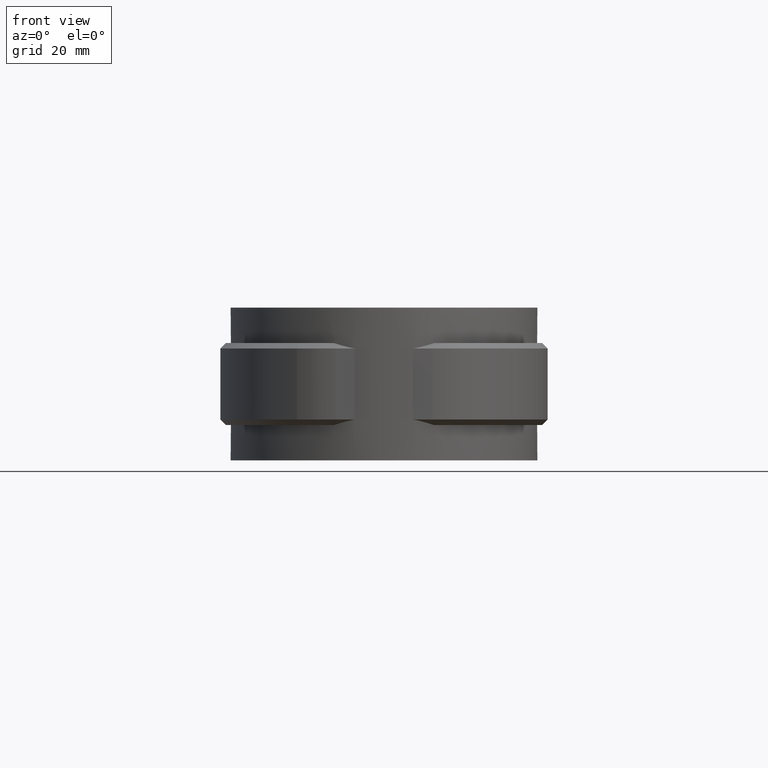
[diagram: clean part render]
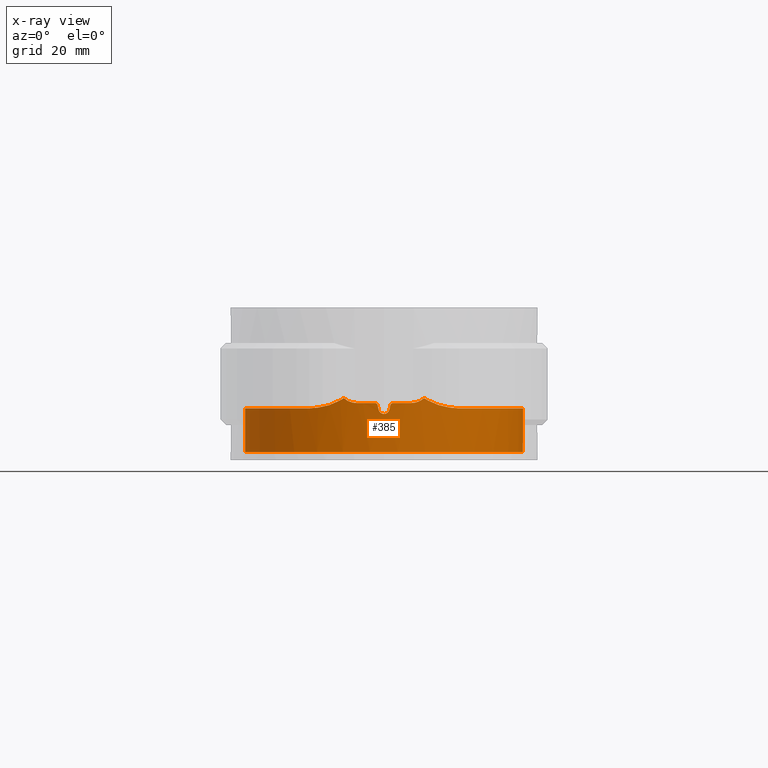
[diagram: x-ray — body ghosted, one internal face saturated and labeled with its STEP entity id]
A machine part, front view, then the same camera in x-ray: the body is ghosted and one INTERNAL B-rep face — a face not visible from any outside direction — is saturated and labeled: STEP entity #385.
In plain terms, the highlighted cylindrical surface (partial cylindrical patch) has radius 25.5 mm, axis along (0, 0, -1).
Its self-contained STEP definition (entity closure, byte-faithful):
#385 = ADVANCED_FACE( '', ( #758 ), #759, .F. );
#758 = FACE_OUTER_BOUND( '', #1499, .T. );
#759 = CYLINDRICAL_SURFACE( '', #1500, 25.5000000000000 );
#1499 = EDGE_LOOP( '', ( #3401, #3402, #3403, #3404, #3405, #3406, #3407, #3408, #3409, #3410, #3411, #3412, #3413, #3414, #3415, #3416, #3417, #3418 ) );
#1500 = AXIS2_PLACEMENT_3D( '', #3419, #3420, #3421 );
#3401 = ORIENTED_EDGE( '', *, *, #7232, .T. );
#3402 = ORIENTED_EDGE( '', *, *, #7202, .T. );
#3403 = ORIENTED_EDGE( '', *, *, #7254, .T. );
#3404 = ORIENTED_EDGE( '', *, *, #7255, .T. );
#3405 = ORIENTED_EDGE( '', *, *, #7256, .T. );
#3406 = ORIENTED_EDGE( '', *, *, #7242, .T. );
#3407 = ORIENTED_EDGE( '', *, *, #7169, .F. );
#3408 = ORIENTED_EDGE( '', *, *, #7257, .F. );
#3409 = ORIENTED_EDGE( '', *, *, #7258, .T. );
#3410 = ORIENTED_EDGE( '', *, *, #7259, .T. );
#3411 = ORIENTED_EDGE( '', *, *, #7260, .T. );
#3412 = ORIENTED_EDGE( '', *, *, #7230, .T. );
#3413 = ORIENTED_EDGE( '', *, *, #7235, .T. );
#3414 = ORIENTED_EDGE( '', *, *, #7212, .T. );
#3415 = ORIENTED_EDGE( '', *, *, #7261, .T. );
#3416 = ORIENTED_EDGE( '', *, *, #7189, .T. );
#3417 = ORIENTED_EDGE( '', *, *, #7262, .T. );
#3418 = ORIENTED_EDGE( '', *, *, #7263, .T. );
#3419 = CARTESIAN_POINT( '', ( 0.000000000000000, 0.000000000000000, 0.000000000000000 ) );
#3420 = DIRECTION( '', ( 0.000000000000000, 0.000000000000000, -1.00000000000000 ) );
#3421 = DIRECTION( '', ( 1.00000000000000, -6.12303176911189E-017, 0.000000000000000 ) );
#7169 = EDGE_CURVE( '', #8166, #8168, #8169, .T. );
#7189 = EDGE_CURVE( '', #8204, #8202, #8205, .T. );
#7202 = EDGE_CURVE( '', #8227, #8225, #8228, .T. );
#7212 = EDGE_CURVE( '', #8246, #8244, #8247, .T. );
#7230 = EDGE_CURVE( '', #8264, #8275, #8277, .T. );
#7232 = EDGE_CURVE( '', #8280, #8227, #8281, .T. );
#7235 = EDGE_CURVE( '', #8275, #8246, #8284, .T. );
#7242 = EDGE_CURVE( '', #8292, #8168, #8296, .T. );
#7254 = EDGE_CURVE( '', #8225, #8314, #8315, .T. );
#7255 = EDGE_CURVE( '', #8314, #8316, #8317, .T. );
#7256 = EDGE_CURVE( '', #8316, #8292, #8318, .T. );
#7257 = EDGE_CURVE( '', #8319, #8166, #8320, .T. );
#7258 = EDGE_CURVE( '', #8319, #8321, #8322, .T. );
#7259 = EDGE_CURVE( '', #8321, #8323, #8324, .T. );
#7260 = EDGE_CURVE( '', #8323, #8264, #8325, .F. );
#7261 = EDGE_CURVE( '', #8244, #8204, #8326, .T. );
#7262 = EDGE_CURVE( '', #8202, #8327, #8328, .T. );
#7263 = EDGE_CURVE( '', #8327, #8280, #8329, .T. );
#8166 = VERTEX_POINT( '', #9924 );
#8168 = VERTEX_POINT( '', #9926 );
#8169 = CIRCLE( '', #9927, 25.5000000000000 );
#8202 = VERTEX_POINT( '', #10003 );
#8204 = VERTEX_POINT( '', #10006 );
#8205 = B_SPLINE_CURVE_WITH_KNOTS( '', 3, ( #10007, #10008, #10009, #10010, #10011, #10012, #10013, #10014, #10015, #10016 ), .UNSPECIFIED., .F., .F., ( 4, 2, 2, 2, 4 ), ( 3.57622406134550E-018, 0.000671619266939441, 0.00134323853387888, 0.00201485780081831, 0.00268647706775775 ), .UNSPECIFIED. );
#8225 = VERTEX_POINT( '', #10054 );
#8227 = VERTEX_POINT( '', #10059 );
#8228 = B_SPLINE_CURVE_WITH_KNOTS( '', 3, ( #10060, #10061, #10062, #10063, #10064, #10065, #10066, #10067, #10068, #10069 ), .UNSPECIFIED., .F., .F., ( 4, 2, 2, 2, 4 ), ( 8.67361737988404E-019, 0.000656875290142325, 0.00131375058028465, 0.00197062587042697, 0.00262750116056930 ), .UNSPECIFIED. );
#8244 = VERTEX_POINT( '', #10123 );
#8246 = VERTEX_POINT( '', #10126 );
#8247 = B_SPLINE_CURVE_WITH_KNOTS( '', 3, ( #10127, #10128, #10129, #10130, #10131, #10132 ), .UNSPECIFIED., .F., .F., ( 4, 2, 4 ), ( 9.10729824887824E-018, 0.000336083199100358, 0.000672166398200708 ), .UNSPECIFIED. );
#8264 = VERTEX_POINT( '', #10205 );
#8275 = VERTEX_POINT( '', #10248 );
#8277 = B_SPLINE_CURVE_WITH_KNOTS( '', 3, ( #10251, #10252, #10253, #10254, #10255, #10256, #10257, #10258, #10259, #10260 ), .UNSPECIFIED., .F., .F., ( 4, 2, 2, 2, 4 ), ( 1.13360787965509E-014, 0.000656997080053211, 0.00131399416009509, 0.00197099124013696, 0.00262798832017883 ), .UNSPECIFIED. );
#8280 = VERTEX_POINT( '', #10263 );
#8281 = CIRCLE( '', #10264, 25.5000000000000 );
#8284 = CIRCLE( '', #10268, 25.5000000000000 );
#8292 = VERTEX_POINT( '', #10282 );
#8296 = LINE( '', #10298, #10299 );
#8314 = VERTEX_POINT( '', #10434 );
#8315 = B_SPLINE_CURVE_WITH_KNOTS( '', 3, ( #10435, #10436, #10437, #10438 ), .UNSPECIFIED., .F., .F., ( 4, 4 ), ( 0.00811585301675247, 0.00891486322571209 ), .UNSPECIFIED. );
#8316 = VERTEX_POINT( '', #10439 );
#8317 = B_SPLINE_CURVE_WITH_KNOTS( '', 3, ( #10440, #10441, #10442, #10443, #10444, #10445, #10446, #10447, #10448, #10449 ), .UNSPECIFIED., .F., .F., ( 4, 2, 2, 2, 4 ), ( 5.49937438786957E-017, 0.00172797127034807, 0.00345594254069609, 0.00518391381104411, 0.00691188508139213 ), .UNSPECIFIED. );
#8318 = B_SPLINE_CURVE_WITH_KNOTS( '', 3, ( #10450, #10451, #10452, #10453, #10454, #10455, #10456, #10457, #10458, #10459, #10460, #10461, #10462, #10463, #10464, #10465, #10466, #10467, #10468, #10469, #10470, #10471, #10472, #10473, #10474, #10475, #10476, #10477, #10478, #10479, #10480, #10481, #10482, #10483, #10484, #10485, #10486, #10487, #10488, #10489, #10490, #10491 ), .UNSPECIFIED., .F., .F., ( 4, 2, 2, 2, 2, 2, 2, 2, 2, 2, 2, 2, 2, 2, 2, 2, 2, 2, 2, 2, 4 ), ( 6.25463444138550E-018, 0.00367893687146761, 0.00735787374293522, 0.00919734217866902, 0.0110368106144028, 0.0147157474858704, 0.0165552159216042, 0.0183946843573380, 0.0220736212288057, 0.0257525581002733, 0.0294314949717409, 0.0331104318432085, 0.0349499002789423, 0.0367893687146761, 0.0404683055861437, 0.0423077740218775, 0.0441472424576113, 0.0478261793290789, 0.0515051162005465, 0.0551840530720142, 0.0588629899434818 ), .UNSPECIFIED. );
#8319 = VERTEX_POINT( '', #10492 );
#8320 = LINE( '', #10493, #10494 );
#8321 = VERTEX_POINT( '', #10495 );
#8322 = B_SPLINE_CURVE_WITH_KNOTS( '', 3, ( #10496, #10497, #10498, #10499, #10500, #10501, #10502, #10503, #10504, #10505, #10506, #10507, #10508, #10509, #10510, #10511, #10512, #10513, #10514, #10515, #10516, #10517, #10518, #10519, #10520, #10521, #10522, #10523, #10524, #10525, #10526, #10527, #10528, #10529, #10530, #10531, #10532, #10533, #10534, #10535, #10536, #10537 ), .UNSPECIFIED., .F., .F., ( 4, 2, 2, 2, 2, 2, 2, 2, 2, 2, 2, 2, 2, 2, 2, 2, 2, 2, 2, 2, 4 ), ( 1.73472347597681E-018, 0.00367893654871730, 0.00735787309743460, 0.00919734137179326, 0.0110368096461519, 0.0147157461948692, 0.0165552144692279, 0.0183946827435865, 0.0220736192923038, 0.0257525558410211, 0.0294314923897384, 0.0331104289384557, 0.0349498972128144, 0.0367893654871730, 0.0404683020358903, 0.0423077703102490, 0.0441472385846076, 0.0478261751333249, 0.0515051116820422, 0.0551840482307596, 0.0588629847794769 ), .UNSPECIFIED. );
#8323 = VERTEX_POINT( '', #10538 );
#8324 = B_SPLINE_CURVE_WITH_KNOTS( '', 3, ( #10539, #10540, #10541, #10542, #10543, #10544, #10545, #10546, #10547, #10548 ), .UNSPECIFIED., .F., .F., ( 4, 2, 2, 2, 4 ), ( 4.90653893338680E-018, 0.00173657544033169, 0.00347315088066337, 0.00520972632099506, 0.00694630176132674 ), .UNSPECIFIED. );
#8325 = B_SPLINE_CURVE_WITH_KNOTS( '', 3, ( #10549, #10550, #10551, #10552 ), .UNSPECIFIED., .F., .F., ( 4, 4 ), ( 0.00811585301675283, 0.00891486322571222 ), .UNSPECIFIED. );
#8326 = ELLIPSE( '', #10553, 116.166725925976, 25.5000000000000 );
#8327 = VERTEX_POINT( '', #10554 );
#8328 = ELLIPSE( '', #10555, 116.166785185337, 25.5000000000000 );
#8329 = B_SPLINE_CURVE_WITH_KNOTS( '', 3, ( #10556, #10557, #10558, #10559, #10560, #10561 ), .UNSPECIFIED., .F., .F., ( 4, 2, 4 ), ( 4.33680868994202E-019, 0.000336089115589811, 0.000672178231179621 ), .UNSPECIFIED. );
#9924 = CARTESIAN_POINT( '', ( -6.02727272727273, 24.7774490912821, -25.0000000000000 ) );
#9926 = CARTESIAN_POINT( '', ( 6.02727272727272, 24.7774490912821, -25.0000000000000 ) );
#9927 = AXIS2_PLACEMENT_3D( '', #13693, #13694, #13695 );
#10003 = CARTESIAN_POINT( '', ( 0.975610000000008, -25.4813301287021, -17.2195120000000 ) );
#10006 = CARTESIAN_POINT( '', ( -0.975609757981845, -25.4813301379683, -17.2195121867475 ) );
#10007 = CARTESIAN_POINT( '', ( -0.975609757981839, -25.4813301379683, -17.2195121867475 ) );
#10008 = CARTESIAN_POINT( '', ( -0.925760627941459, -25.4832387234868, -17.4410637856838 ) );
#10009 = CARTESIAN_POINT( '', ( -0.802002231077810, -25.4880019776319, -17.6390184721073 ) );
#10010 = CARTESIAN_POINT( '', ( -0.447412249788038, -25.4966914455417, -17.9226995543411 ) );
#10011 = CARTESIAN_POINT( '', ( -0.227096997064048, -25.5000000081517, -18.0000001885913 ) );
#10012 = CARTESIAN_POINT( '', ( 0.227098827707817, -25.4999999918483, -17.9999998182756 ) );
#10013 = CARTESIAN_POINT( '', ( 0.447442086841579, -25.4966908125914, -17.9226810256618 ) );
#10014 = CARTESIAN_POINT( '', ( 0.802000627794581, -25.4880019186867, -17.6390147326494 ) );
#10015 = CARTESIAN_POINT( '', ( 0.925760910065650, -25.4832387131592, -17.4410636187117 ) );
#10016 = CARTESIAN_POINT( '', ( 0.975610000000002, -25.4813301287021, -17.2195120000000 ) );
#10054 = CARTESIAN_POINT( '', ( 7.34939546607895, -24.4179521312269, -15.0942900655030 ) );
#10059 = CARTESIAN_POINT( '', ( 4.99999999999994, -25.0049995001000, -16.0000000000000 ) );
#10060 = CARTESIAN_POINT( '', ( 4.99999999999994, -25.0049995001000, -16.0000000000000 ) );
#10061 = CARTESIAN_POINT( '', ( 5.21785024917448, -24.9614381616617, -16.0000000000000 ) );
#10062 = CARTESIAN_POINT( '', ( 5.43170297572619, -24.9157182564739, -15.9798433810228 ) );
#10063 = CARTESIAN_POINT( '', ( 5.85190055052108, -24.8203882604465, -15.9014618721545 ) );
#10064 = CARTESIAN_POINT( '', ( 6.05950288664773, -24.7704539655453, -15.8427302358524 ) );
#10065 = CARTESIAN_POINT( '', ( 6.46137466473467, -24.6686765420121, -15.6875971962857 ) );
#10066 = CARTESIAN_POINT( '', ( 6.65244226158002, -24.6176876953642, -15.5927177426437 ) );
#10067 = CARTESIAN_POINT( '', ( 7.01566762755793, -24.5166462480042, -15.3692424921455 ) );
#10068 = CARTESIAN_POINT( '', ( 7.18870220699179, -24.4663181163661, -15.2398142762877 ) );
#10069 = CARTESIAN_POINT( '', ( 7.34939546607989, -24.4179521312326, -15.0942900655021 ) );
#10123 = CARTESIAN_POINT( '', ( -1.16219499999999, -25.4735019732658, -16.3902440000000 ) );
#10126 = CARTESIAN_POINT( '', ( -1.65000000000006, -25.4465616537873, -16.0000000000000 ) );
#10127 = CARTESIAN_POINT( '', ( -1.65000000000006, -25.4465616537873, -15.9999999999999 ) );
#10128 = CARTESIAN_POINT( '', ( -1.53659991012928, -25.4539147158958, -15.9999999995132 ) );
#10129 = CARTESIAN_POINT( '', ( -1.42648680398593, -25.4602242781617, -16.0385576255759 ) );
#10130 = CARTESIAN_POINT( '', ( -1.24913749967912, -25.4695414250657, -16.1803181190874 ) );
#10131 = CARTESIAN_POINT( '', ( -1.18713991437309, -25.4723638943793, -16.2793777116754 ) );
#10132 = CARTESIAN_POINT( '', ( -1.16219499999998, -25.4735019732658, -16.3902440000000 ) );
#10205 = CARTESIAN_POINT( '', ( -7.34939546608233, -24.4179521312244, -15.0942900654970 ) );
#10248 = CARTESIAN_POINT( '', ( -5.00000000000005, -25.0049995001000, -16.0000000000000 ) );
#10251 = CARTESIAN_POINT( '', ( -7.34939546607640, -24.4179521312336, -15.0942900655054 ) );
#10252 = CARTESIAN_POINT( '', ( -7.18867317861765, -24.4663268534215, -15.2398405644545 ) );
#10253 = CARTESIAN_POINT( '', ( -7.01739298879574, -24.5161510957157, -15.3680206501498 ) );
#10254 = CARTESIAN_POINT( '', ( -6.65451597925057, -24.6171258677584, -15.5916005232456 ) );
#10255 = CARTESIAN_POINT( '', ( -6.46172400214024, -24.6685855994419, -15.6874421514948 ) );
#10256 = CARTESIAN_POINT( '', ( -6.05972404065117, -24.7704004228430, -15.8426650273733 ) );
#10257 = CARTESIAN_POINT( '', ( -5.85412782847892, -24.8198636515774, -15.9009090507596 ) );
#10258 = CARTESIAN_POINT( '', ( -5.43379886269243, -24.9152618736964, -15.9795883758927 ) );
#10259 = CARTESIAN_POINT( '', ( -5.21787341681420, -24.9614335290602, -16.0000000000000 ) );
#10260 = CARTESIAN_POINT( '', ( -5.00000000000004, -25.0049995001000, -16.0000000000000 ) );
#10263 = CARTESIAN_POINT( '', ( 1.65000000000001, -25.4465616537873, -16.0000000000000 ) );
#10264 = AXIS2_PLACEMENT_3D( '', #13754, #13755, #13756 );
#10268 = AXIS2_PLACEMENT_3D( '', #13761, #13762, #13763 );
#10282 = CARTESIAN_POINT( '', ( 6.02727272727271, 24.7774490912821, -16.9956496928054 ) );
#10298 = CARTESIAN_POINT( '', ( 6.02727272727272, 24.7774490912821, 0.000000000000000 ) );
#10299 = VECTOR( '', #13770, 1000.00000000000 );
#10434 = CARTESIAN_POINT( '', ( 8.00834492137894, -24.2098412142711, -15.4949080193091 ) );
#10435 = CARTESIAN_POINT( '', ( 7.34939546609011, -24.4179521312295, -15.0942900654863 ) );
#10436 = CARTESIAN_POINT( '', ( 7.56702074644177, -24.3524505592661, -15.2330267285927 ) );
#10437 = CARTESIAN_POINT( '', ( 7.78692269222707, -24.2830852132142, -15.3661620377571 ) );
#10438 = CARTESIAN_POINT( '', ( 8.00834492137897, -24.2098412142712, -15.4949080193088 ) );
#10439 = CARTESIAN_POINT( '', ( 14.0380773796952, -21.2880807843660, -16.9974328591539 ) );
#10440 = CARTESIAN_POINT( '', ( 8.00834492137895, -24.2098412142711, -15.4949080193089 ) );
#10441 = CARTESIAN_POINT( '', ( 8.48983332359671, -24.0505702315961, -15.7844891131942 ) );
#10442 = CARTESIAN_POINT( '', ( 8.98884999455241, -23.8693963122353, -16.0095498479531 ) );
#10443 = CARTESIAN_POINT( '', ( 10.0012845353573, -23.4632012346555, -16.3816355753594 ) );
#10444 = CARTESIAN_POINT( '', ( 10.5175586698763, -23.2369189913460, -16.5278009702963 ) );
#10445 = CARTESIAN_POINT( '', ( 11.5430829606839, -22.7449044919392, -16.7571346918594 ) );
#10446 = CARTESIAN_POINT( '', ( 12.0531284718487, -22.4790097879914, -16.8404867727127 ) );
#10447 = CARTESIAN_POINT( '', ( 13.0588333618893, -21.9100583804314, -16.9562092116827 ) );
#10448 = CARTESIAN_POINT( '', ( 13.5529697894653, -21.6079770661447, -16.9884071160002 ) );
#10449 = CARTESIAN_POINT( '', ( 14.0380773796952, -21.2880807843660, -16.9974328591539 ) );
#10450 = CARTESIAN_POINT( '', ( 14.0380773796952, -21.2880807843660, -16.9974328591539 ) );
#10451 = CARTESIAN_POINT( '', ( 15.0765748335687, -20.6032605902036, -16.9979265931093 ) );
#10452 = CARTESIAN_POINT( '', ( 16.0523639473271, -19.8513548135207, -16.9954096359647 ) );
#10453 = CARTESIAN_POINT( '', ( 17.8836958658101, -18.2188939952168, -16.9909686459608 ) );
#10454 = CARTESIAN_POINT( '', ( 18.7392252450658, -17.3383246082448, -16.9890322548827 ) );
#10455 = CARTESIAN_POINT( '', ( 19.9303857377764, -15.9188956933258, -16.9885188924525 ) );
#10456 = CARTESIAN_POINT( '', ( 20.3134828182761, -15.4271260931492, -16.9887197431276 ) );
#10457 = CARTESIAN_POINT( '', ( 21.0386748467039, -14.4224812149986, -16.9897911094285 ) );
#10458 = CARTESIAN_POINT( '', ( 21.3810845038201, -13.9096038910828, -16.9906567757462 ) );
#10459 = CARTESIAN_POINT( '', ( 22.3491571729683, -12.3400402561434, -16.9937210098761 ) );
#10460 = CARTESIAN_POINT( '', ( 22.9159649377144, -11.2525798041515, -16.9964959273308 ) );
#10461 = CARTESIAN_POINT( '', ( 23.6482491570491, -9.55972343349781, -16.9976474064891 ) );
#10462 = CARTESIAN_POINT( '', ( 23.8726141413114, -8.98512090568258, -16.9973802276300 ) );
#10463 = CARTESIAN_POINT( '', ( 24.2809248362162, -7.81478040175771, -16.9961107237983 ) );
#10464 = CARTESIAN_POINT( '', ( 24.4645155229831, -7.21933194521091, -16.9951420838765 ) );
#10465 = CARTESIAN_POINT( '', ( 24.9456398910393, -5.43048289420762, -16.9922404067617 ) );
#10466 = CARTESIAN_POINT( '', ( 25.1774584165853, -4.22498207278108, -16.9904120080646 ) );
#10467 = CARTESIAN_POINT( '', ( 25.4667570883330, -1.78862216190125, -16.9894640693842 ) );
#10468 = CARTESIAN_POINT( '', ( 25.5242275512407, -0.556664814739376, -16.9903519592623 ) );
#10469 = CARTESIAN_POINT( '', ( 25.4572985075182, 1.92925387199237, -16.9937760262378 ) );
#10470 = CARTESIAN_POINT( '', ( 25.3338276137651, 3.15463021899783, -16.9962349985735 ) );
#10471 = CARTESIAN_POINT( '', ( 24.9140823583699, 5.57162576120670, -16.9980132001823 ) );
#10472 = CARTESIAN_POINT( '', ( 24.6177909264119, 6.76324171536867, -16.9964557262702 ) );
#10473 = CARTESIAN_POINT( '', ( 24.0407996273683, 8.52477098965045, -16.9936565369849 ) );
#10474 = CARTESIAN_POINT( '', ( 23.8252540906671, 9.10992766866604, -16.9926821796117 ) );
#10475 = CARTESIAN_POINT( '', ( 23.3549453192577, 10.2557322384927, -16.9911378370572 ) );
#10476 = CARTESIAN_POINT( '', ( 23.1001622816006, 10.8171263074039, -16.9905663916474 ) );
#10477 = CARTESIAN_POINT( '', ( 22.2782570688612, 12.4675634315691, -16.9897706981991 ) );
#10478 = CARTESIAN_POINT( '', ( 21.6538720806443, 13.5230333142732, -16.9905756844630 ) );
#10479 = CARTESIAN_POINT( '', ( 20.6024251696231, 15.0388905393996, -16.9930092149303 ) );
#10480 = CARTESIAN_POINT( '', ( 20.2327247852361, 15.5329087892142, -16.9939971044032 ) );
#10481 = CARTESIAN_POINT( '', ( 19.4539299472975, 16.4978488687100, -16.9958555627113 ) );
#10482 = CARTESIAN_POINT( '', ( 19.0453063875102, 16.9678325370193, -16.9967206487053 ) );
#10483 = CARTESIAN_POINT( '', ( 17.7803400055229, 18.3203071721486, -16.9980772435644 ) );
#10484 = CARTESIAN_POINT( '', ( 16.8789739270038, 19.1534679280417, -16.9963780320902 ) );
#10485 = CARTESIAN_POINT( '', ( 14.9622992328879, 20.6853739672388, -16.9914261752550 ) );
#10486 = CARTESIAN_POINT( '', ( 13.9452719100081, 21.3851451340508, -16.9886755019620 ) );
#10487 = CARTESIAN_POINT( '', ( 11.7992644014955, 22.6400618513306, -16.9863457853404 ) );
#10488 = CARTESIAN_POINT( '', ( 10.6918342745611, 23.1829359891876, -16.9868077532162 ) );
#10489 = CARTESIAN_POINT( '', ( 8.41019594682170, 24.1046146073633, -16.9903920334459 ) );
#10490 = CARTESIAN_POINT( '', ( 7.23598862404174, 24.4834212301904, -16.9935195303903 ) );
#10491 = CARTESIAN_POINT( '', ( 6.02727272727271, 24.7774490912821, -16.9956496928054 ) );
#10492 = CARTESIAN_POINT( '', ( -6.02727272727275, 24.7774490912821, -16.9956496928054 ) );
#10493 = CARTESIAN_POINT( '', ( -6.02727272727273, 24.7774490912821, 0.000000000000000 ) );
#10494 = VECTOR( '', #13780, 1000.00000000000 );
#10495 = CARTESIAN_POINT( '', ( -14.0380773796952, -21.2880807843660, -16.9974328591539 ) );
#10496 = CARTESIAN_POINT( '', ( -6.02727272727274, 24.7774490912821, -16.9956496928054 ) );
#10497 = CARTESIAN_POINT( '', ( -7.23599043617389, 24.4834207893777, -16.9935195271967 ) );
#10498 = CARTESIAN_POINT( '', ( -8.40833073396200, 24.1050752320822, -16.9903983421356 ) );
#10499 = CARTESIAN_POINT( '', ( -10.6832558674306, 23.1866927729472, -16.9868178661389 ) );
#10500 = CARTESIAN_POINT( '', ( -11.7858329233706, 22.6466378563930, -16.9863493675824 ) );
#10501 = CARTESIAN_POINT( '', ( -13.3862508932498, 21.7126645761644, -16.9880597906732 ) );
#10502 = CARTESIAN_POINT( '', ( -13.9128744927420, 21.3790956027200, -16.9890068560960 ) );
#10503 = CARTESIAN_POINT( '', ( -14.9346540631046, 20.6782473497254, -16.9912961055778 ) );
#10504 = CARTESIAN_POINT( '', ( -15.4301058098801, 20.3110731277476, -16.9926338382480 ) );
#10505 = CARTESIAN_POINT( '', ( -16.8712199239447, 19.1604636138356, -16.9963598621752 ) );
#10506 = CARTESIAN_POINT( '', ( -17.7718715818086, 18.3281911366352, -16.9980708961795 ) );
#10507 = CARTESIAN_POINT( '', ( -19.0326615365576, 16.9819256063667, -16.9967417703606 ) );
#10508 = CARTESIAN_POINT( '', ( -19.4378359745583, 16.5167986474918, -16.9958907319080 ) );
#10509 = CARTESIAN_POINT( '', ( -20.2172730657249, 15.5530053276380, -16.9940370857584 ) );
#10510 = CARTESIAN_POINT( '', ( -20.5911038168385, 15.0544916301788, -16.9930376635202 ) );
#10511 = CARTESIAN_POINT( '', ( -21.6478825447636, 13.5330809457384, -16.9905851457162 ) );
#10512 = CARTESIAN_POINT( '', ( -22.2730579252557, 12.4766092997537, -16.9897744849032 ) );
#10513 = CARTESIAN_POINT( '', ( -23.3678649736153, 10.2809423466617, -16.9908168287797 ) );
#10514 = CARTESIAN_POINT( '', ( -23.8378586430603, 9.14070903084015, -16.9926751662879 ) );
#10515 = CARTESIAN_POINT( '', ( -24.6140797702939, 6.77813715814395, -16.9964346116637 ) );
#10516 = CARTESIAN_POINT( '', ( -24.9115322156421, 5.58301647356335, -16.9980108872498 ) );
#10517 = CARTESIAN_POINT( '', ( -25.3323822198717, 3.16621561827067, -16.9962541141243 ) );
#10518 = CARTESIAN_POINT( '', ( -25.4557627807475, 1.94453246483195, -16.9938050584987 ) );
#10519 = CARTESIAN_POINT( '', ( -25.5073199262339, 0.0916323898620036, -16.9912410308401 ) );
#10520 = CARTESIAN_POINT( '', ( -25.5019716075597, -0.531937079970104, -16.9905481609041 ) );
#10521 = CARTESIAN_POINT( '', ( -25.4460859163682, -1.76924403818120, -16.9897792483557 ) );
#10522 = CARTESIAN_POINT( '', ( -25.3957817943379, -2.38369131147522, -16.9896998937419 ) );
#10523 = CARTESIAN_POINT( '', ( -25.1793005739384, -4.21469945113368, -16.9903995509112 ) );
#10524 = CARTESIAN_POINT( '', ( -24.9478887611008, -5.41898940567200, -16.9922216189884 ) );
#10525 = CARTESIAN_POINT( '', ( -24.4699097122901, -7.20081027566576, -16.9951121105604 ) );
#10526 = CARTESIAN_POINT( '', ( -24.2886897740294, -7.79063256149351, -16.9960755250095 ) );
#10527 = CARTESIAN_POINT( '', ( -23.8813713223785, -8.96183633023490, -16.9973636166444 ) );
#10528 = CARTESIAN_POINT( '', ( -23.6553997221500, -9.54217470382321, -16.9976493789595 ) );
#10529 = CARTESIAN_POINT( '', ( -22.9212815692395, -11.2422856926676, -16.9965224643119 ) );
#10530 = CARTESIAN_POINT( '', ( -22.3541015416671, -12.3308245985621, -16.9937425463766 ) );
#10531 = CARTESIAN_POINT( '', ( -21.0671094039184, -14.4198471690583, -16.9896571284805 ) );
#10532 = CARTESIAN_POINT( '', ( -20.3460259093577, -15.4218763635057, -16.9883571462402 ) );
#10533 = CARTESIAN_POINT( '', ( -18.7496539580305, -17.3275941010177, -16.9890106882525 ) );
#10534 = CARTESIAN_POINT( '', ( -17.8905079229677, -18.2124564405393, -16.9909520571000 ) );
#10535 = CARTESIAN_POINT( '', ( -16.0539679187839, -19.8502885974731, -16.9954058155834 ) );
#10536 = CARTESIAN_POINT( '', ( -15.0765755120066, -20.6032601428188, -16.9979265934318 ) );
#10537 = CARTESIAN_POINT( '', ( -14.0380773796952, -21.2880807843660, -16.9974328591539 ) );
#10538 = CARTESIAN_POINT( '', ( -8.00834492137896, -24.2098412142709, -15.4949080193092 ) );
#10539 = CARTESIAN_POINT( '', ( -14.0380773796952, -21.2880807843659, -16.9974328591539 ) );
#10540 = CARTESIAN_POINT( '', ( -13.5533081799099, -21.6077539200897, -16.9884134119751 ) );
#10541 = CARTESIAN_POINT( '', ( -13.0599904453706, -21.9093280854432, -16.9562581668129 ) );
#10542 = CARTESIAN_POINT( '', ( -12.0570345764823, -22.4768753346694, -16.8410199944559 ) );
#10543 = CARTESIAN_POINT( '', ( -11.5460437637076, -22.7433785813847, -16.7576414705347 ) );
#10544 = CARTESIAN_POINT( '', ( -10.5222652635921, -23.2347655381380, -16.5290076604641 ) );
#10545 = CARTESIAN_POINT( '', ( -10.0056174788121, -23.4614129377732, -16.3831116098494 ) );
#10546 = CARTESIAN_POINT( '', ( -8.98850884475528, -23.8695828810807, -16.0095404049030 ) );
#10547 = CARTESIAN_POINT( '', ( -8.48867257435764, -24.0509541944727, -15.7837910049264 ) );
#10548 = CARTESIAN_POINT( '', ( -8.00834492137897, -24.2098412142712, -15.4949080193089 ) );
#10549 = CARTESIAN_POINT( '', ( -7.34939546609041, -24.4179521312294, -15.0942900654865 ) );
#10550 = CARTESIAN_POINT( '', ( -7.56702074644200, -24.3524505592660, -15.2330267285929 ) );
#10551 = CARTESIAN_POINT( '', ( -7.78692269222713, -24.2830852132142, -15.3661620377571 ) );
#10552 = CARTESIAN_POINT( '', ( -8.00834492137897, -24.2098412142712, -15.4949080193088 ) );
#10553 = AXIS2_PLACEMENT_3D( '', #13781, #13782, #13783 );
#10554 = CARTESIAN_POINT( '', ( 1.16219512100909, -25.4735019677449, -16.3902439066263 ) );
#10555 = AXIS2_PLACEMENT_3D( '', #13784, #13785, #13786 );
#10556 = CARTESIAN_POINT( '', ( 1.16219512100909, -25.4735019677449, -16.3902439066263 ) );
#10557 = CARTESIAN_POINT( '', ( 1.18714002698999, -25.4723638891226, -16.2793776533785 ) );
#10558 = CARTESIAN_POINT( '', ( 1.24913144108464, -25.4695417339208, -16.1803240327294 ) );
#10559 = CARTESIAN_POINT( '', ( 1.42648745791819, -25.4602242532433, -16.0385561040501 ) );
#10560 = CARTESIAN_POINT( '', ( 1.53659994153397, -25.4539147138594, -16.0000000000000 ) );
#10561 = CARTESIAN_POINT( '', ( 1.65000000000001, -25.4465616537873, -16.0000000000000 ) );
#13693 = CARTESIAN_POINT( '', ( 0.000000000000000, 0.000000000000000, -25.0000000000000 ) );
#13694 = DIRECTION( '', ( 0.000000000000000, 0.000000000000000, 1.00000000000000 ) );
#13695 = DIRECTION( '', ( 1.00000000000000, 0.000000000000000, 0.000000000000000 ) );
#13754 = CARTESIAN_POINT( '', ( 0.000000000000000, 0.000000000000000, -16.0000000000000 ) );
#13755 = DIRECTION( '', ( -1.91739769892429E-032, 3.13145149531439E-016, 1.00000000000000 ) );
#13756 = DIRECTION( '', ( 0.000000000000000, -1.00000000000000, 3.13145149531439E-016 ) );
#13761 = CARTESIAN_POINT( '', ( 0.000000000000000, 0.000000000000000, -16.0000000000000 ) );
#13762 = DIRECTION( '', ( -1.91739769892429E-032, 3.13145149531439E-016, 1.00000000000000 ) );
#13763 = DIRECTION( '', ( 0.000000000000000, -1.00000000000000, 3.13145149531439E-016 ) );
#13770 = DIRECTION( '', ( 0.000000000000000, 0.000000000000000, -1.00000000000000 ) );
#13780 = DIRECTION( '', ( 0.000000000000000, 0.000000000000000, -1.00000000000000 ) );
#13781 = CARTESIAN_POINT( '', ( 0.000000000000000, 0.000000000000000, -21.5555578794501 ) );
#13782 = DIRECTION( '', ( 0.975609781292650, 1.70596433957385E-016, 0.219512083143750 ) );
#13783 = DIRECTION( '', ( -0.219512083143750, -3.83841770684827E-017, 0.975609781292650 ) );
#13784 = CARTESIAN_POINT( '', ( 0.000000000000000, 0.000000000000000, -21.5555610922364 ) );
#13785 = DIRECTION( '', ( -0.975609806487721, -3.31181834532552E-017, 0.219511971165564 ) );
#13786 = DIRECTION( '', ( 0.219511971165564, 7.45158328965435E-018, 0.975609806487721 ) );